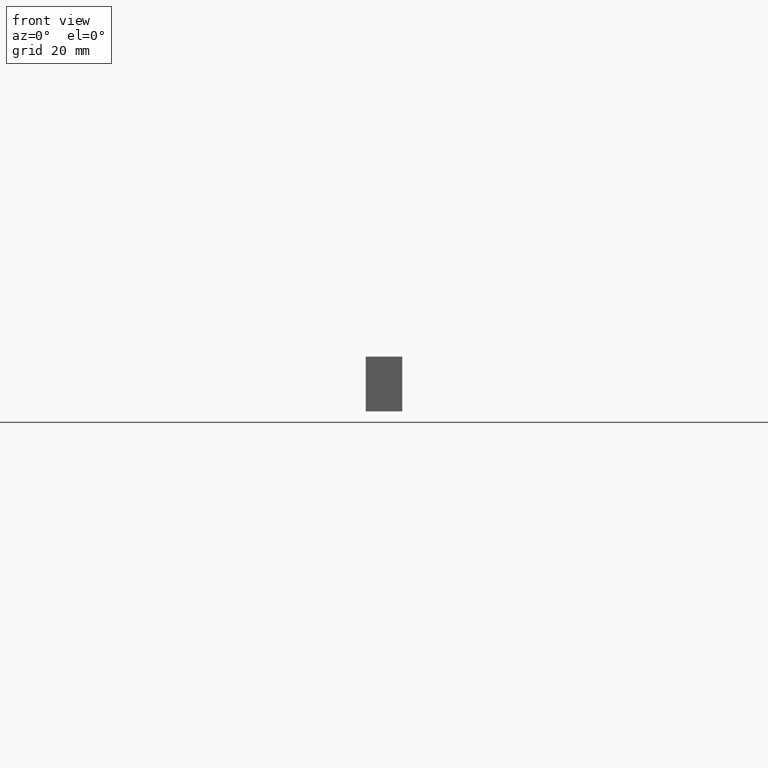
[diagram: clean part render]
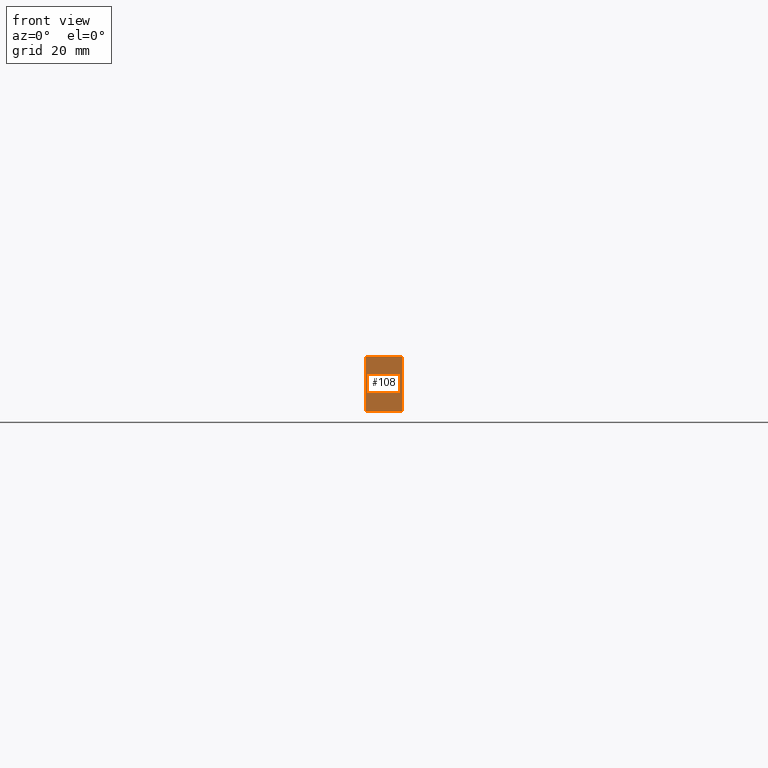
[diagram: same view with one face highlighted and labeled with its STEP entity id]
A machine part, front view. The second image highlights one B-rep face of the part: STEP entity #108.
In plain terms, the highlighted planar face has unit normal (0, 1, 0).
Its self-contained STEP definition (entity closure, byte-faithful):
#12 = VERTEX_POINT ( 'NONE', #147 ) ;
#29 = AXIS2_PLACEMENT_3D ( 'NONE', #229, #170, #149 ) ;
#30 = ORIENTED_EDGE ( 'NONE', *, *, #119, .T. ) ;
#34 = VECTOR ( 'NONE', #109, 1000.000000000000000 ) ;
#36 = ORIENTED_EDGE ( 'NONE', *, *, #187, .T. ) ;
#42 = CARTESIAN_POINT ( 'NONE',  ( 0.0000000000000000000, 0.0000000000000000000, 15.00000000000000000 ) ) ;
#47 = CARTESIAN_POINT ( 'NONE',  ( 0.0000000000000000000, 0.0000000000000000000, 0.0000000000000000000 ) ) ;
#54 = VERTEX_POINT ( 'NONE', #104 ) ;
#64 = DIRECTION ( 'NONE',  ( 1.000000000000000000, -0.0000000000000000000, -0.0000000000000000000 ) ) ;
#66 = PLANE ( 'NONE',  #29 ) ;
#82 = EDGE_CURVE ( 'NONE', #158, #54, #114, .T. ) ;
#83 = CARTESIAN_POINT ( 'NONE',  ( 0.0000000000000000000, 0.0000000000000000000, 0.0000000000000000000 ) ) ;
#89 = DIRECTION ( 'NONE',  ( -0.0000000000000000000, -0.0000000000000000000, 1.000000000000000000 ) ) ;
#98 = LINE ( 'NONE', #47, #126 ) ;
#100 = CARTESIAN_POINT ( 'NONE',  ( 10.00000000000000000, 0.0000000000000000000, 0.0000000000000000000 ) ) ;
#104 = CARTESIAN_POINT ( 'NONE',  ( 0.0000000000000000000, 0.0000000000000000000, 0.0000000000000000000 ) ) ;
#108 = ADVANCED_FACE ( 'NONE', ( #233 ), #66, .F. ) ;
#109 = DIRECTION ( 'NONE',  ( -0.0000000000000000000, -0.0000000000000000000, -1.000000000000000000 ) ) ;
#112 = VECTOR ( 'NONE', #224, 1000.000000000000000 ) ;
#113 = VERTEX_POINT ( 'NONE', #120 ) ;
#114 = LINE ( 'NONE', #83, #34 ) ;
#119 = EDGE_CURVE ( 'NONE', #12, #113, #176, .T. ) ;
#120 = CARTESIAN_POINT ( 'NONE',  ( 10.00000000000000000, 0.0000000000000000000, 15.00000000000000000 ) ) ;
#126 = VECTOR ( 'NONE', #64, 1000.000000000000000 ) ;
#147 = CARTESIAN_POINT ( 'NONE',  ( 10.00000000000000000, 0.0000000000000000000, 0.0000000000000000000 ) ) ;
#149 = DIRECTION ( 'NONE',  ( 1.000000000000000000, 0.0000000000000000000, 0.0000000000000000000 ) ) ;
#158 = VERTEX_POINT ( 'NONE', #226 ) ;
#163 = ORIENTED_EDGE ( 'NONE', *, *, #82, .T. ) ;
#170 = DIRECTION ( 'NONE',  ( -0.0000000000000000000, 1.000000000000000000, 0.0000000000000000000 ) ) ;
#176 = LINE ( 'NONE', #100, #238 ) ;
#187 = EDGE_CURVE ( 'NONE', #54, #12, #98, .T. ) ;
#195 = EDGE_CURVE ( 'NONE', #113, #158, #205, .T. ) ;
#205 = LINE ( 'NONE', #42, #112 ) ;
#214 = EDGE_LOOP ( 'NONE', ( #163, #36, #30, #230 ) ) ;
#224 = DIRECTION ( 'NONE',  ( -1.000000000000000000, -0.0000000000000000000, -0.0000000000000000000 ) ) ;
#226 = CARTESIAN_POINT ( 'NONE',  ( 0.0000000000000000000, 0.0000000000000000000, 15.00000000000000000 ) ) ;
#229 = CARTESIAN_POINT ( 'NONE',  ( 0.0000000000000000000, 0.0000000000000000000, 0.0000000000000000000 ) ) ;
#230 = ORIENTED_EDGE ( 'NONE', *, *, #195, .T. ) ;
#233 = FACE_OUTER_BOUND ( 'NONE', #214, .T. ) ;
#238 = VECTOR ( 'NONE', #89, 1000.000000000000000 ) ;